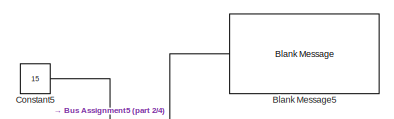
[diagram: root canvas - part 1/4, top center region]
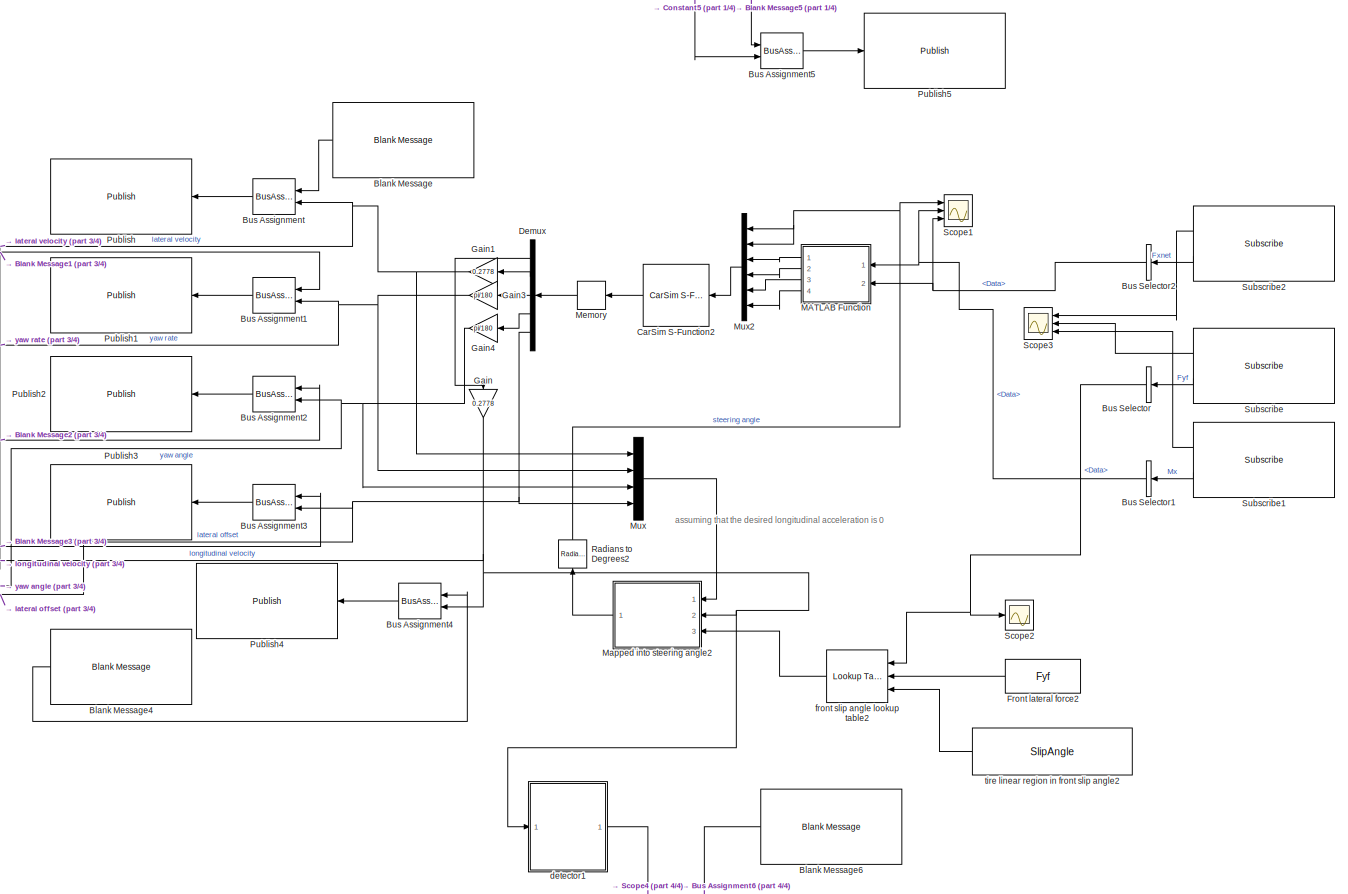
[diagram: root canvas - part 2/4, most of the canvas]
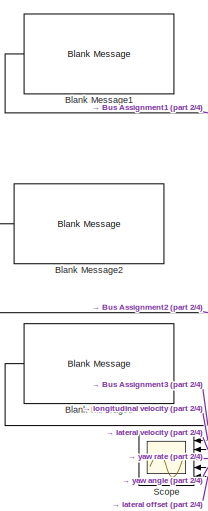
[diagram: root canvas - part 3/4, middle left region]
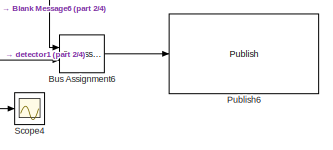
[diagram: root canvas - part 4/4, bottom center region]
MODEL slx_7f288d678509
KIND model
CONFIG AbsTol = auto
CONFIG EnableMultiTasking = off
CONFIG FixedStep = auto
CONFIG MaxStep = auto
CONFIG MinStep = auto
CONFIG RelTol = 1e-2
CONFIG SampleTimeConstraint = Unconstrained
CONFIG SolverName = VariableStepAuto
CONFIG StartTime = 0.0
CONFIG StopTime = 15
BLOCK [Reference] Blank Message  REF=robotlib/Blank Message
  Ports = [0, 1]
  SourceBlock = robotlib/Blank Message
  SourceProductBaseCode = RR
  SourceType = ROS Blank Message
BLOCK [Reference] Blank Message1  REF=robotlib/Blank Message
  Ports = [0, 1]
  SourceBlock = robotlib/Blank Message
  SourceProductBaseCode = RR
  SourceType = ROS Blank Message
BLOCK [Reference] Blank Message2  REF=robotlib/Blank Message
  Ports = [0, 1]
  SourceBlock = robotlib/Blank Message
  SourceProductBaseCode = RR
  SourceType = ROS Blank Message
BLOCK [Reference] Blank Message3  REF=robotlib/Blank Message
  Ports = [0, 1]
  SourceBlock = robotlib/Blank Message
  SourceProductBaseCode = RR
  SourceType = ROS Blank Message
BLOCK [Reference] Blank Message4  REF=robotlib/Blank Message
  Ports = [0, 1]
  SourceBlock = robotlib/Blank Message
  SourceProductBaseCode = RR
  SourceType = ROS Blank Message
BLOCK [Reference] Blank Message5  REF=robotlib/Blank Message
  Ports = [0, 1]
  SourceBlock = robotlib/Blank Message
  SourceProductBaseCode = RR
  SourceType = ROS Blank Message
BLOCK [Reference] Blank Message6  REF=robotlib/Blank Message
  Ports = [0, 1]
  SourceBlock = robotlib/Blank Message
  SourceProductBaseCode = RR
  SourceType = ROS Blank Message
BLOCK [BusAssignment] Bus Assignment
  AssignedSignals = Data
  Ports = [2, 1]
BLOCK [BusAssignment] Bus Assignment1
  AssignedSignals = Data
  Ports = [2, 1]
BLOCK [BusAssignment] Bus Assignment2
  AssignedSignals = Data
  Ports = [2, 1]
BLOCK [BusAssignment] Bus Assignment3
  AssignedSignals = Data
  Ports = [2, 1]
BLOCK [BusAssignment] Bus Assignment4
  AssignedSignals = Data
  Ports = [2, 1]
BLOCK [BusAssignment] Bus Assignment5
  AssignedSignals = Data
  Ports = [2, 1]
BLOCK [BusAssignment] Bus Assignment6
  AssignedSignals = Data
  Ports = [2, 1]
BLOCK [BusSelector] Bus Selector
  OutputSignals = Data
  Ports = [1, 1]
BLOCK [BusSelector] Bus Selector1
  OutputSignals = Data
  Ports = [1, 1]
BLOCK [BusSelector] Bus Selector2
  OutputSignals = Data
  Ports = [1, 1]
BLOCK [Reference] CarSim S-Function2  REF=Solver_SF/CarSim S-Function2
  AttributesFormatString = Vehicle Code: %<VehicleCode>
  Ports = [1, 1]
  Priority = 1
  SourceBlock = Solver_SF/CarSim S-Function2
  SourceType = Vehicle math model library
BLOCK [Constant] Constant5
  Value = 15
BLOCK [Demux] Demux
  Outputs = 5
  Ports = [1, 5]
BLOCK [Constant] Front lateral force2
  Value = Fyf
BLOCK [Gain] Gain
  Gain = 0.2778
  NameLocation = left
BLOCK [Gain] Gain1
  Gain = 0.2778
  NameLocation = top
BLOCK [Gain] Gain3
  Gain = pi/180
BLOCK [Gain] Gain4
  Gain = pi/180
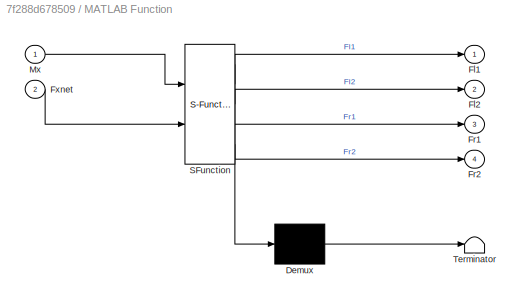
BLOCK [SubSystem] MATLAB Function
  ErrorFcn = Stateflow.Translate.translate
  PermitHierarchicalResolution = ExplicitOnly
  Ports = [2, 4]
  RequestExecContextInheritance = off
  SFBlockType = MATLAB Function
  TreatAsAtomicUnit = on
BLOCK [Demux] MATLAB Function/ Demux 
  Outputs = 1
  Ports = [1, 1]
BLOCK [S-Function] MATLAB Function/ SFunction 
  EnableBusSupport = on
  FunctionName = sf_sfun
  PortCounts = [2 5]
  Ports = [2, 5]
  SFcnIsStateOwnerBlock = off
  SFunctionDeploymentMode = off
  Tag = Stateflow S-Function 16
BLOCK [Terminator] MATLAB Function/ Terminator 
BLOCK [Outport] MATLAB Function/Fl1
BLOCK [Outport] MATLAB Function/Fl2
  Port = 2
BLOCK [Outport] MATLAB Function/Fr1
  Port = 3
BLOCK [Outport] MATLAB Function/Fr2
  Port = 4
BLOCK [Inport] MATLAB Function/Fxnet
  Port = 2
BLOCK [Inport] MATLAB Function/Mx
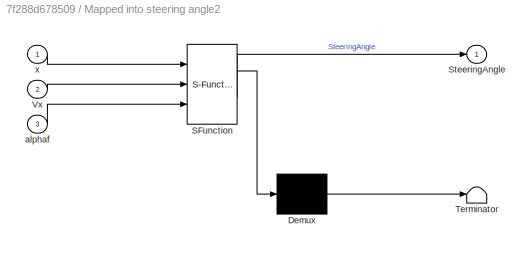
BLOCK [SubSystem] Mapped into steering angle2
  ErrorFcn = Stateflow.Translate.translate
  PermitHierarchicalResolution = ExplicitOnly
  Ports = [3, 1]
  RequestExecContextInheritance = off
  SFBlockType = MATLAB Function
  TreatAsAtomicUnit = on
BLOCK [Demux] Mapped into steering angle2/ Demux 
  Outputs = 1
  Ports = [1, 1]
BLOCK [S-Function] Mapped into steering angle2/ SFunction 
  EnableBusSupport = on
  FunctionName = sf_sfun
  PortCounts = [3 2]
  Ports = [3, 2]
  SFcnIsStateOwnerBlock = off
  SFunctionDeploymentMode = off
  Tag = Stateflow S-Function 13
BLOCK [Terminator] Mapped into steering angle2/ Terminator 
BLOCK [Outport] Mapped into steering angle2/SteeringAngle
BLOCK [Inport] Mapped into steering angle2/Vx
  Port = 2
BLOCK [Inport] Mapped into steering angle2/alphaf
  Port = 3
BLOCK [Inport] Mapped into steering angle2/x
BLOCK [Memory] Memory
  InitialCondition = [54 0 0 0 0]'
BLOCK [Mux] Mux
  DisplayOption = bar
  Ports = [4, 1]
BLOCK [Mux] Mux2
  DisplayOption = bar
  Inputs = 6
  Ports = [6, 1]
BLOCK [Reference] Publish  REF=robotlib/Publish
  Ports = [1]
  SourceBlock = robotlib/Publish
  SourceProductBaseCode = RR
  SourceType = ROS Publish
BLOCK [Reference] Publish1  REF=robotlib/Publish
  Ports = [1]
  SourceBlock = robotlib/Publish
  SourceProductBaseCode = RR
  SourceType = ROS Publish
BLOCK [Reference] Publish2  REF=robotlib/Publish
  Ports = [1]
  SourceBlock = robotlib/Publish
  SourceProductBaseCode = RR
  SourceType = ROS Publish
BLOCK [Reference] Publish3  REF=robotlib/Publish
  Ports = [1]
  SourceBlock = robotlib/Publish
  SourceProductBaseCode = RR
  SourceType = ROS Publish
BLOCK [Reference] Publish4  REF=robotlib/Publish
  Ports = [1]
  SourceBlock = robotlib/Publish
  SourceProductBaseCode = RR
  SourceType = ROS Publish
BLOCK [Reference] Publish5  REF=robotlib/Publish
  Ports = [1]
  SourceBlock = robotlib/Publish
  SourceProductBaseCode = RR
  SourceType = ROS Publish
BLOCK [Reference] Publish6  REF=robotlib/Publish
  Ports = [1]
  SourceBlock = robotlib/Publish
  SourceProductBaseCode = RR
  SourceType = ROS Publish
BLOCK [Reference] Radians to Degrees2  REF=simulink_extras/Transformations/Radians
to Degrees
  NameLocation = left
  Ports = [1, 1]
  SourceBlock = simulink_extras/Transformations/Radians\nto Degrees
  SourceProductBaseCode = SL
  SourceType = RadiansToDegrees
BLOCK [Scope] Scope
  Floating = off
  NumInputPorts = 5
  Ports = [5]
  ScopeSpecificationString = Simulink.scopes.TimeScopeBlockCfg('CurrentConfiguration', extmgr.ConfigurationSet(extmgr.Configuration('Core','General UI',true),extmgr.Configuration('Core','Source UI',true),extmgr.Configuration('Sources','WiredSimulink',true,'DataLoggingVariableName','ScopeData1'),extmgr.Configuration('Visuals','Time Domain',true,'SerializedDisplays',{struct('MinYLimReal','7.70409','MaxYLimReal','15.81261','YLab...<+4816ch>
BLOCK [Scope] Scope1
  Floating = off
  NumInputPorts = 3
  Ports = [3]
  ScopeSpecificationString = Simulink.scopes.TimeScopeBlockCfg('CurrentConfiguration', extmgr.ConfigurationSet(extmgr.Configuration('Core','General UI',true),extmgr.Configuration('Core','Source UI',true),extmgr.Configuration('Sources','WiredSimulink',true,'DataLoggingVariableName','ScopeData2'),extmgr.Configuration('Visuals','Time Domain',true,'SerializedDisplays',{struct('MinYLimReal','-0.00052','MaxYLimReal','0.00144','YLab...<+2750ch>
BLOCK [Scope] Scope2
  Floating = off
  NumInputPorts = 1
  Ports = [1]
  ScopeSpecificationString = Simulink.scopes.TimeScopeBlockCfg('CurrentConfiguration', extmgr.ConfigurationSet(extmgr.Configuration('Core','General UI',true),extmgr.Configuration('Core','Source UI',true),extmgr.Configuration('Sources','WiredSimulink',true,'DataLoggingVariableName','ScopeData1'),extmgr.Configuration('Visuals','Time Domain',true,'SerializedDisplays',{struct('MinYLimReal','-1.00000','MaxYLimReal','1.00000','YLab...<+1398ch>
BLOCK [Scope] Scope3
  Floating = off
  NumInputPorts = 3
  Ports = [3]
  ScopeSpecificationString = Simulink.scopes.TimeScopeBlockCfg('CurrentConfiguration', extmgr.ConfigurationSet(extmgr.Configuration('Core','General UI',true),extmgr.Configuration('Core','Source UI',true),extmgr.Configuration('Sources','WiredSimulink',true,'DataLoggingVariableName','ScopeData2'),extmgr.Configuration('Visuals','Time Domain',true,'SerializedDisplays',{struct('MinYLimReal','-1.00000','MaxYLimReal','1.00000','YLab...<+2756ch>
BLOCK [Scope] Scope4
  Floating = off
  NumInputPorts = 1
  Ports = [1]
  ScopeSpecificationString = Simulink.scopes.TimeScopeBlockCfg('CurrentConfiguration', extmgr.ConfigurationSet(extmgr.Configuration('Core','General UI',true),extmgr.Configuration('Core','Source UI',true),extmgr.Configuration('Sources','WiredSimulink',true,'DataLoggingVariableName','ScopeData1'),extmgr.Configuration('Visuals','Time Domain',true),extmgr.Configuration('Tools','Plot Navigation',true),extmgr.Configuration('Tools',...<+40ch>
BLOCK [Reference] Subscribe  REF=robotlib/Subscribe
  Ports = [0, 2]
  SourceBlock = robotlib/Subscribe
  SourceProductBaseCode = RR
  SourceType = ROS Subscribe
BLOCK [Reference] Subscribe1  REF=robotlib/Subscribe
  Ports = [0, 2]
  SourceBlock = robotlib/Subscribe
  SourceProductBaseCode = RR
  SourceType = ROS Subscribe
BLOCK [Reference] Subscribe2  REF=robotlib/Subscribe
  Ports = [0, 2]
  SourceBlock = robotlib/Subscribe
  SourceProductBaseCode = RR
  SourceType = ROS Subscribe
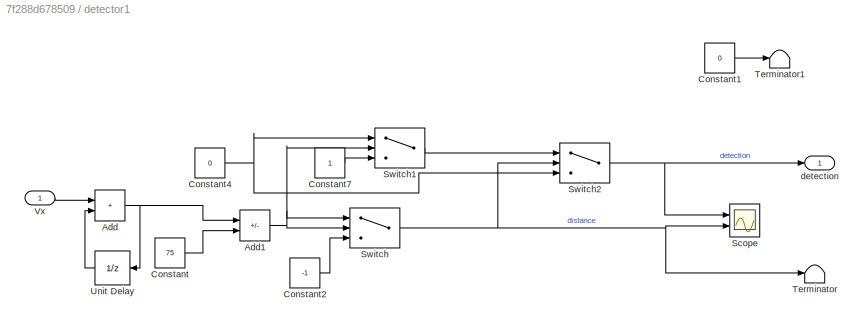
BLOCK [SubSystem] detector1
  Ports = [1, 1]
  RequestExecContextInheritance = off
BLOCK [Sum] detector1/Add
  IconShape = rectangular
  Ports = [2, 1]
BLOCK [Sum] detector1/Add1
  IconShape = rectangular
  Inputs = -+
  Ports = [2, 1]
BLOCK [Constant] detector1/Constant
  Value = 75
BLOCK [Constant] detector1/Constant1
  Value = 0
BLOCK [Constant] detector1/Constant2
  Value = -1
BLOCK [Constant] detector1/Constant4
  Value = 0
BLOCK [Constant] detector1/Constant7
BLOCK [Scope] detector1/Scope
  Floating = off
  NumInputPorts = 2
  Ports = [2]
  ScopeSpecificationString = Simulink.scopes.TimeScopeBlockCfg('CurrentConfiguration', extmgr.ConfigurationSet(extmgr.Configuration('Core','General UI',true),extmgr.Configuration('Core','Source UI',true),extmgr.Configuration('Sources','WiredSimulink',true),extmgr.Configuration('Visuals','Time Domain',true,'SerializedDisplays',{struct('MinYLimReal','-0.125','MaxYLimReal','1.125','YLabelReal','','MinYLimMag','0.00000','MaxYLimM...<+1985ch>
BLOCK [Switch] detector1/Switch
  Criteria = u2 > Threshold
  InputSameDT = off
  SaturateOnIntegerOverflow = off
BLOCK [Switch] detector1/Switch1
  Criteria = u2 > Threshold
  InputSameDT = off
  SaturateOnIntegerOverflow = off
  Threshold = 50
BLOCK [Switch] detector1/Switch2
  Criteria = u2 > Threshold
  InputSameDT = off
  SaturateOnIntegerOverflow = off
BLOCK [Terminator] detector1/Terminator
BLOCK [Terminator] detector1/Terminator1
BLOCK [UnitDelay] detector1/Unit Delay
  HasFrameUpgradeWarning = on
  SampleTime = -1
BLOCK [Inport] detector1/Vx
BLOCK [Outport] detector1/detection
BLOCK [Reference] front slip angle lookup table2  REF=simulink/Lookup
Tables/Lookup
Table
Dynamic
  Ports = [3, 1]
  SourceBlock = simulink/Lookup\nTables/Lookup\nTable\nDynamic
  SourceProductBaseCode = SL
  SourceType = Lookup Table Dynamic
BLOCK [Constant] tire linear region in front slip angle2
  Value = SlipAngle
ANNOTATION (root): assuming that the desired longitudinal acceleration is 0
LINE Blank Message1:1 -> Bus Assignment1:1
LINE Blank Message2:1 -> Bus Assignment2:1
LINE Blank Message3:1 -> Bus Assignment3:1
LINE Blank Message4:1 -> Bus Assignment4:1
LINE Blank Message5:1 -> Bus Assignment5:1
LINE Blank Message6:1 -> Bus Assignment6:1
LINE Blank Message:1 -> Bus Assignment:1
LINE Bus Assignment1:1 -> Publish1:1
LINE Bus Assignment2:1 -> Publish2:1
LINE Bus Assignment3:1 -> Publish3:1
LINE Bus Assignment4:1 -> Publish4:1
LINE Bus Assignment5:1 -> Publish5:1
LINE Bus Assignment6:1 -> Publish6:1
LINE Bus Assignment:1 -> Publish:1
NET Bus Selector1:1 -> MATLAB Function:1, Scope1:2
NET Bus Selector2:1 -> MATLAB Function:2, Scope1:3
NET Bus Selector:1 -> Scope2:1, front slip angle lookup table2:1
LINE CarSim S-Function2:1 -> Memory:1
LINE Constant5:1 -> Bus Assignment5:2
LINE Demux:1 -> Gain:1
LINE Demux:2 -> Gain1:1
LINE Demux:3 -> Gain3:1
LINE Demux:4 -> Gain4:1
NET Demux:5 -> Bus Assignment3:2, Mux:4, Scope:5
LINE Front lateral force2:1 -> front slip angle lookup table2:2
NET Gain1:1 -> Bus Assignment:2, Mux:1, Scope:2
NET Gain3:1 -> Bus Assignment1:2, Mux:2, Scope:3
NET Gain4:1 -> Bus Assignment2:2, Mux:3, Scope:4
NET Gain:1 -> Bus Assignment4:2, Mapped into steering angle2:2, Scope:1, detector1:1
LINE MATLAB Function:1 -> Mux2:3
LINE MATLAB Function:2 -> Mux2:4
LINE MATLAB Function:3 -> Mux2:5
LINE MATLAB Function:4 -> Mux2:6
LINE Mapped into steering angle2:1 -> Radians to Degrees2:1
LINE Memory:1 -> Demux:1
LINE Mux2:1 -> CarSim S-Function2:1
LINE Mux:1 -> Mapped into steering angle2:1
NET Radians to Degrees2:1 -> Mux2:1, Mux2:2, Scope1:1
LINE Subscribe1:1 -> Scope3:3
LINE Subscribe1:2 -> Bus Selector1:1
LINE Subscribe2:1 -> Scope3:1
LINE Subscribe2:2 -> Bus Selector2:1
LINE Subscribe:1 -> Scope3:2
LINE Subscribe:2 -> Bus Selector:1
NET detector1/Add1:1 -> detector1/Switch1:2, detector1/Switch:1, detector1/Switch:2
NET detector1/Add:1 -> detector1/Add1:1, detector1/Unit Delay:1
LINE detector1/Constant1:1 -> detector1/Terminator1:1
LINE detector1/Constant2:1 -> detector1/Switch:3
NET detector1/Constant4:1 -> detector1/Switch1:1, detector1/Switch2:3
LINE detector1/Constant7:1 -> detector1/Switch1:3
LINE detector1/Constant:1 -> detector1/Add1:2
LINE detector1/Switch1:1 -> detector1/Switch2:1
NET detector1/Switch2:1 -> detector1/Scope:1, detector1/detection:1
NET detector1/Switch:1 -> detector1/Scope:2, detector1/Switch2:2, detector1/Terminator:1
LINE detector1/Unit Delay:1 -> detector1/Add:2
LINE detector1/Vx:1 -> detector1/Add:1
NET detector1:1 -> Bus Assignment6:2, Scope4:1
LINE front slip angle lookup table2:1 -> Mapped into steering angle2:3
LINE tire linear region in front slip angle2:1 -> front slip angle lookup table2:3
note: NET lines group one-source signal fan-out (src -> all destinations, sorted); 1:1 wires keep LINE
CHART Mapped into steering angle2 states=1 transitions=1
  STATE_LABEL 'eML_blk_kernel()'
  STATE_LABEL 'SCRIPT:\nfunction SteeringAngle = fcn(x,Vx, alphaf)\n\nlf = 1.11;  % distance from front axle to the mass center\n\nVy = x(1); %lateral velocity\nr = x(2);  %yaw rate\nSteeringAngle = Vy/Vx+lf*r/Vx-alphaf;\n\n'
CHART MATLAB Function states=1 transitions=1
  STATE_LABEL 'eML_blk_kernel()'
  STATE_LABEL 'SCRIPT:\nfunction [Fl1,Fl2,Fr1,Fr2] = fcn(Mx,Fxnet)\n\nw = 1.875; % the width of the car\n\nFwf = zeros(2,1);\nFwr = zeros(2,1);\n\nif Mx > 0\n    Fwf(1) = Fxnet/2+0;\n    Fwf(2) = Fxnet/2-Mx/w;\n    Fwr(1) = 0;\n    Fwr(2) = -Mx/w;\nelseif Mx < 0\n    Fwf(1) = Fxnet/2+Mx/w;\n    Fwf(2) = Fxnet/2+0;\n    Fwr(1) = Mx/w;\n    Fwr(2) = 0;\nelse\n    Fwf(1) = Fxnet/2+0;\n    Fwf(2) = Fxnet/2+0;\n    Fwr(1) = 0;\n    Fwr(2)...<+66ch>'
CHART  states=0 transitions=0
CHART  states=0 transitions=0
